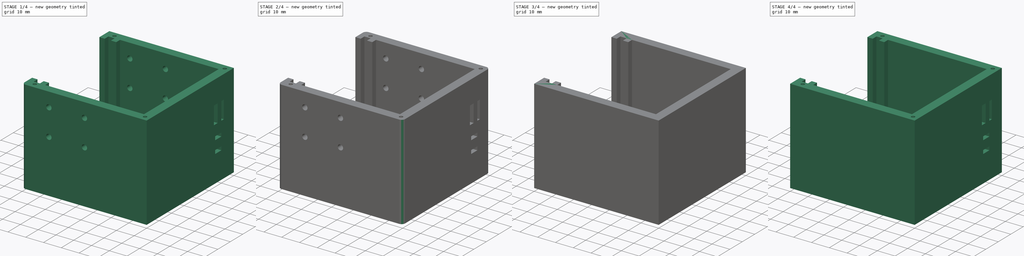
[diagram: build sequence overview — one tinted view per stage of 4, left to right]
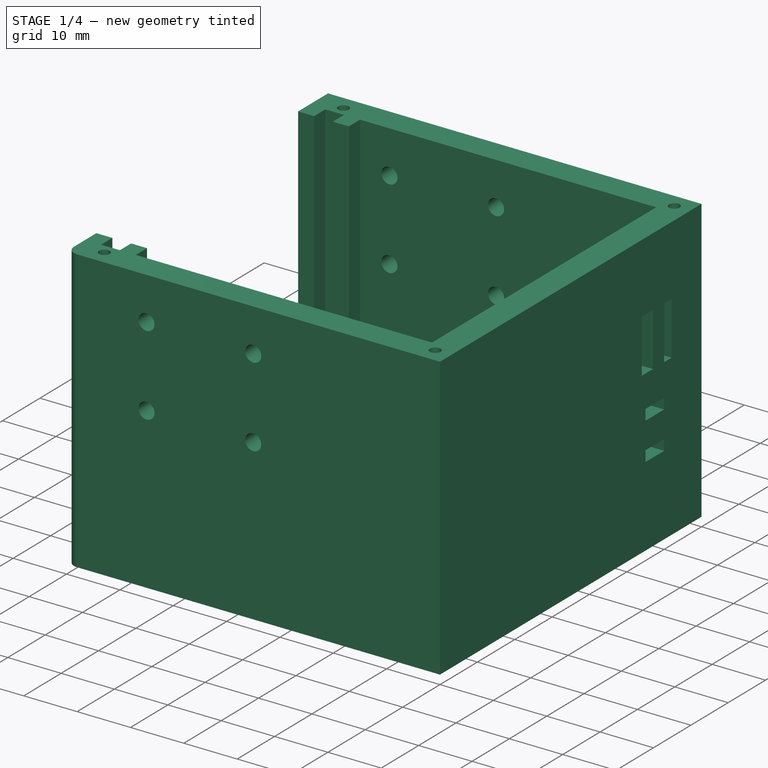
[diagram: stage 1 of 4 — iso view after this stage's code; geometry added in this stage tinted green]
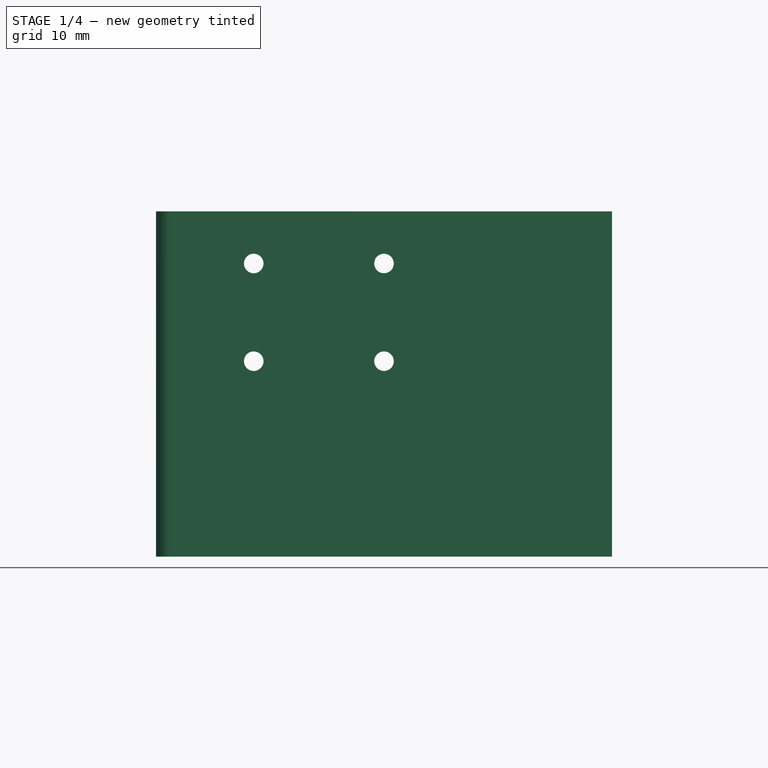
[diagram: stage 1 of 4 — front view after this stage's code; geometry added in this stage tinted green]
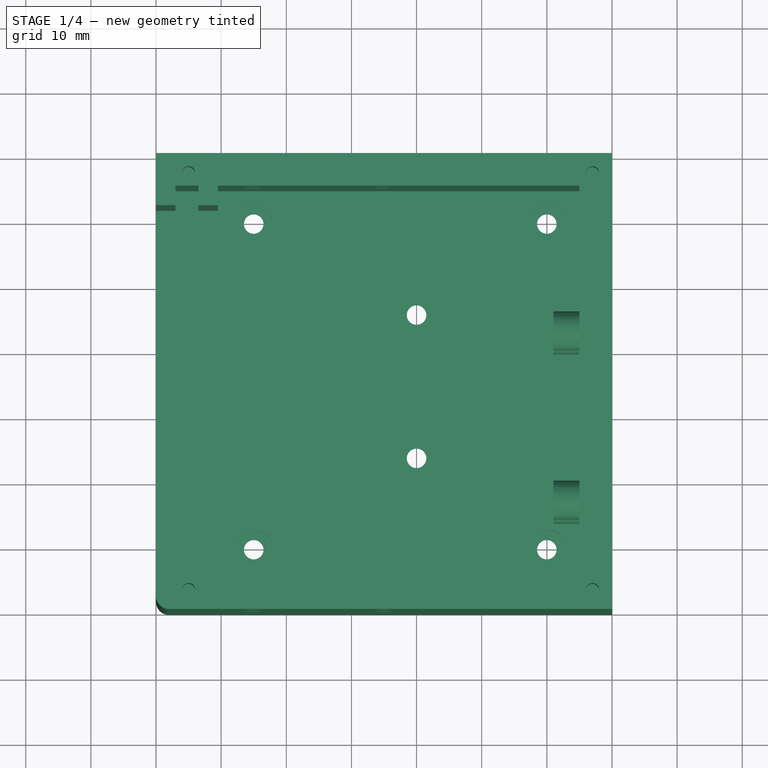
[diagram: stage 1 of 4 — top view after this stage's code; geometry added in this stage tinted green]
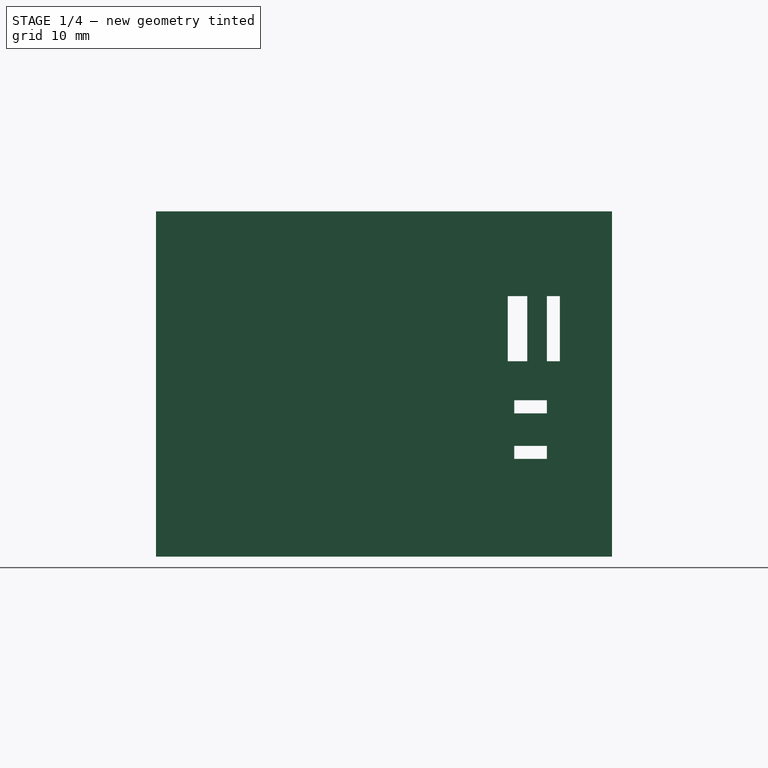
[diagram: stage 1 of 4 — right view after this stage's code; geometry added in this stage tinted green]
FCSTD DOCUMENT  (FreeCAD 0.16R6706 (Git))
Label: iROB-EA_Camara
License: All rights reserved
LicenseURL: http://en.wikipedia.org/wiki/All_rights_reserved
objects: Sketcher::SketchObject×10, PartDesign::Pocket×7, PartDesign::Fillet×4, PartDesign::Pad×3
note: 34 computed .brp shape members not serialized (recipe doc carries the construction recipe); baked Part::Feature solids carry a one-line shape summary decoded from their .brp

FEATURE [Sketcher::SketchObject] Sketch008  label="Taladros_Inferiores_1"
  Placement = pos=(0,0,0) rot=(1,0,0;3.14159rad)
  sketch-geometry (4):
    g0: Circle CenterX=15 CenterY=-10 CenterZ=0 NormalX=0 NormalY=0 NormalZ=1 Radius=1.5
    g1: Circle CenterX=15 CenterY=-60 CenterZ=0 NormalX=0 NormalY=0 NormalZ=1 Radius=1.5
    g2: Circle CenterX=60 CenterY=-10 CenterZ=0 NormalX=0 NormalY=0 NormalZ=1 Radius=1.5
    g3: Circle CenterX=60 CenterY=-60 CenterZ=0 NormalX=0 NormalY=0 NormalZ=1 Radius=1.5
  constraints (12):
    c: Radius(g0) = 1.5
    c: Radius(g1) = 1.5
    c: DistanceX(g1,g0) = 0
    c: DistanceY(g1,g0) = 50
    c: DistanceY(g0,g-1) = 10
    c: Radius(g2) = 1.5
    c: Radius(g3) = 1.5
    c: DistanceY(g0,g2) = 0
    c: DistanceX(g0,g2) = 45
    c: DistanceX(g2,g3) = 0
    c: DistanceY(g1,g3) = 0
    c: DistanceX(g-1,g0) = 15
FEATURE [PartDesign::Pocket] Pocket005
  Length = 5
  Sketch = -> Sketch008
  Type = 0
FEATURE [Sketcher::SketchObject] Sketch009  label="Taladros_Inferiores_2"
  Placement = pos=(0,0,3) rot=(0,0,1;0rad)
  Support = -> Pocket005 [Face1]
  sketch-geometry (4):
    g0: Circle CenterX=15 CenterY=60 CenterZ=0 NormalX=0 NormalY=0 NormalZ=1 Radius=3
    g1: Circle CenterX=60 CenterY=60 CenterZ=0 NormalX=0 NormalY=0 NormalZ=1 Radius=3
    g2: Circle CenterX=15 CenterY=10 CenterZ=0 NormalX=0 NormalY=0 NormalZ=1 Radius=3
    g3: Circle CenterX=60 CenterY=10 CenterZ=0 NormalX=0 NormalY=0 NormalZ=1 Radius=3
  constraints (12):
    c: Radius(g0) = 3
    c: Radius(g1) = 3
    c: DistanceY(g1,g0) = 0
    c: DistanceX(g0,g1) = 45
    c: Radius(g2) = 3
    c: Radius(g3) = 3
    c: DistanceY(g3,g2) = 0
    c: DistanceX(g3,g1) = 0
    c: DistanceX(g2,g0) = 0
    c: DistanceY(g2,g0) = 50
    c: DistanceX(g-1,g2) = 15
    c: DistanceY(g-1,g2) = 10
FEATURE [PartDesign::Pocket] Pocket006
  Length = 1
  Sketch = -> Sketch009
  Type = 0
FEATURE [Sketcher::SketchObject] Sketch010  label="Taladros_Microfono_Foco"
  Placement = pos=(0,70,0) rot=(0,0.707107,0.707107;3.14159rad)
  Support = -> Pocket006 [Face26]
  sketch-geometry (4):
    g0: Circle CenterX=-35 CenterY=45 CenterZ=0 NormalX=0 NormalY=0 NormalZ=1 Radius=1.5
    g1: Circle CenterX=-15 CenterY=45 CenterZ=0 NormalX=0 NormalY=0 NormalZ=1 Radius=1.5
    g2: Circle CenterX=-35 CenterY=30 CenterZ=0 NormalX=0 NormalY=0 NormalZ=1 Radius=1.5
    g3: Circle CenterX=-15 CenterY=30 CenterZ=0 NormalX=0 NormalY=0 NormalZ=1 Radius=1.5
  constraints (12):
    c: Radius(g0) = 1.5
    c: Radius(g1) = 1.5
    c: DistanceY(g0,g1) = 0
    c: DistanceX(g0,g1) = 20
    c: Radius(g2) = 1.5
    c: Radius(g3) = 1.5
    c: DistanceY(g3,g2) = 0
    c: DistanceX(g2,g3) = 20
    c: DistanceY(g2,g0) = 15
    c: DistanceX(g3,g1) = 0
    c: DistanceX(g-1,g3) = -15
    c: DistanceY(g-1,g3) = 30
FEATURE [PartDesign::Pocket] Pocket007
  Length = 80
  Sketch = -> Sketch010
  Type = 0
FEATURE [PartDesign::Fillet] Fillet
  Base = -> Pocket007 [Edge26]
  Radius = 2
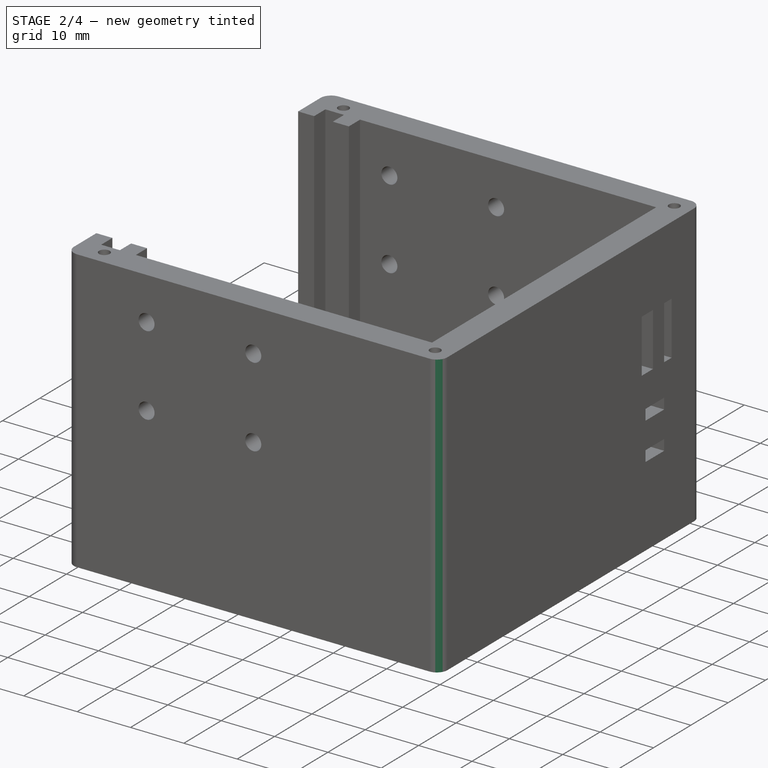
[diagram: stage 2 of 4 — iso view after this stage's code; geometry added in this stage tinted green]
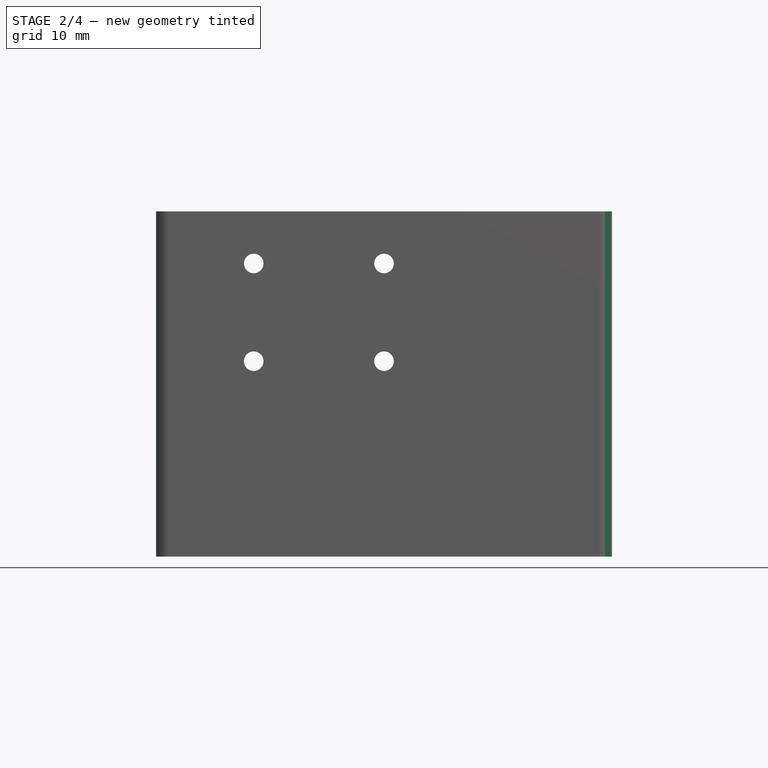
[diagram: stage 2 of 4 — front view after this stage's code; geometry added in this stage tinted green]
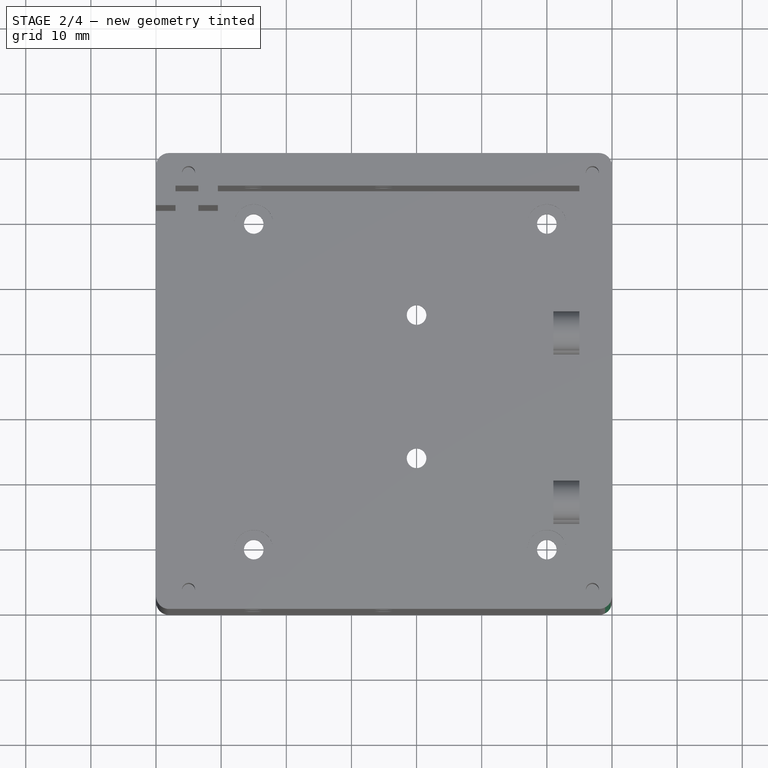
[diagram: stage 2 of 4 — top view after this stage's code; geometry added in this stage tinted green]
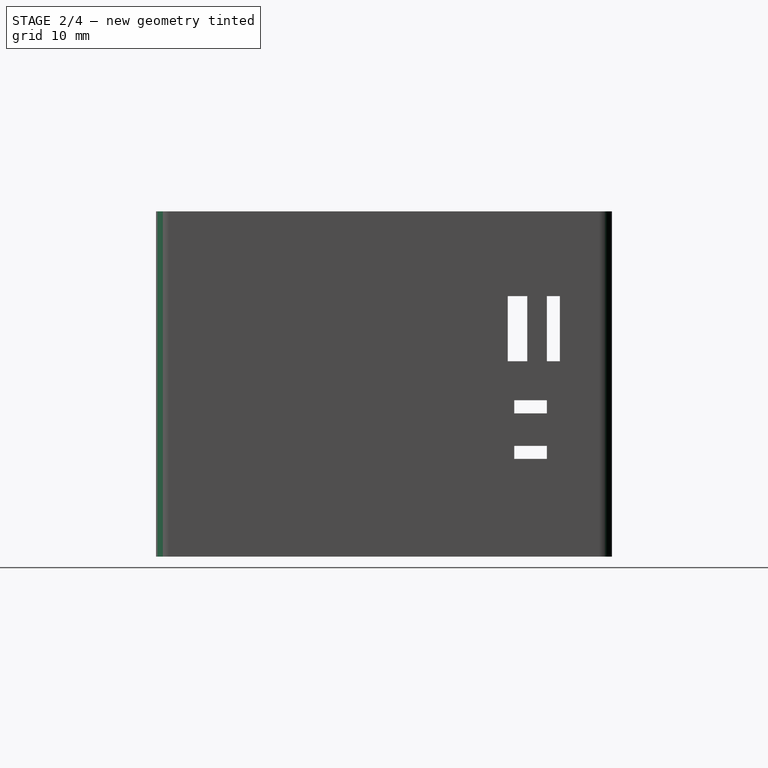
[diagram: stage 2 of 4 — right view after this stage's code; geometry added in this stage tinted green]
FEATURE [PartDesign::Fillet] Fillet001
  Base = -> Fillet [Edge71]
  Radius = 2
FEATURE [PartDesign::Fillet] Fillet002
  Base = -> Fillet001 [Edge39]
  Radius = 2
FEATURE [PartDesign::Fillet] Fillet003
  Base = -> Fillet002 [Edge52]
  Radius = 2
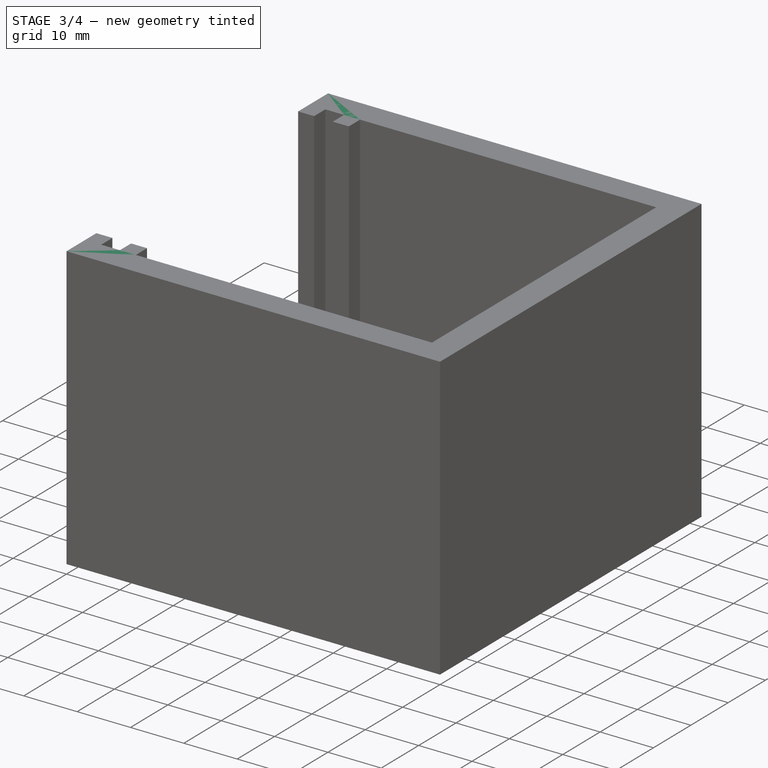
[diagram: stage 3 of 4 — iso view after this stage's code; geometry added in this stage tinted green]
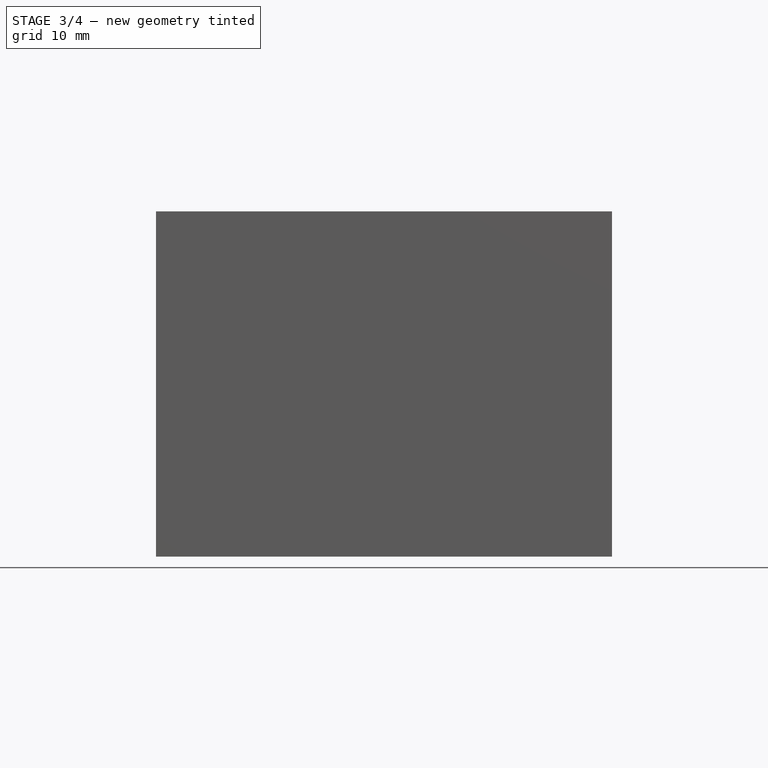
[diagram: stage 3 of 4 — front view after this stage's code; geometry added in this stage tinted green]
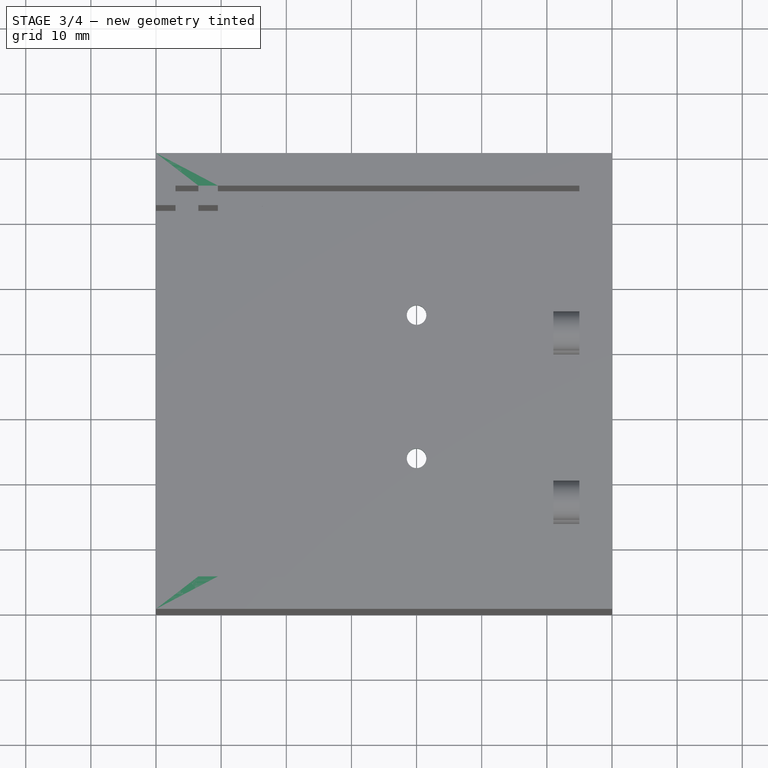
[diagram: stage 3 of 4 — top view after this stage's code; geometry added in this stage tinted green]
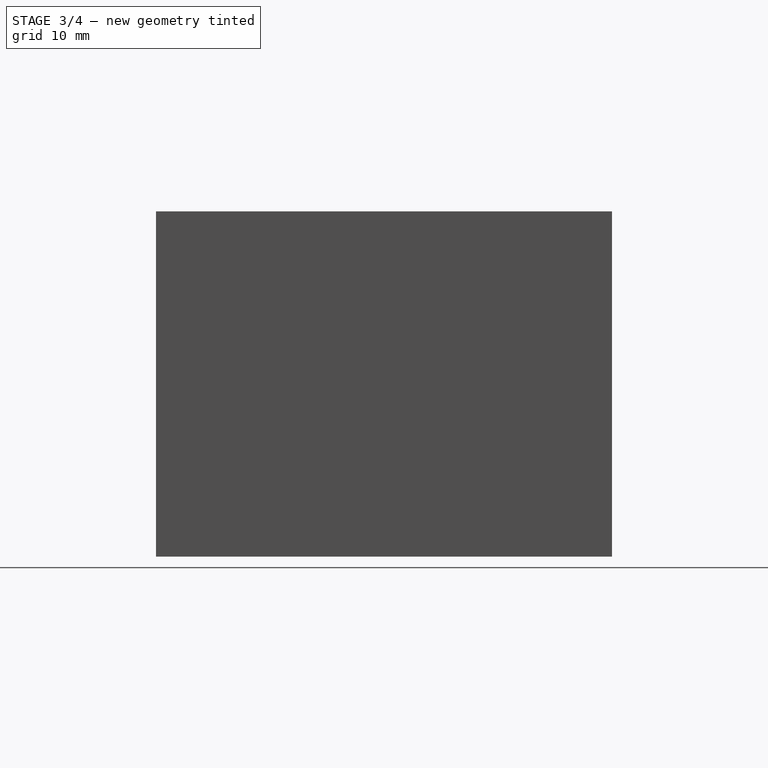
[diagram: stage 3 of 4 — right view after this stage's code; geometry added in this stage tinted green]
FEATURE [Sketcher::SketchObject] Sketch  label="Base"
  sketch-geometry (4):
    g0: LineSegment StartX=0 StartY=70 StartZ=0 EndX=70 EndY=70 EndZ=0
    g1: LineSegment StartX=70 StartY=70 StartZ=0 EndX=70 EndY=0 EndZ=0
    g2: LineSegment StartX=70 StartY=0 StartZ=0 EndX=0 EndY=0 EndZ=0
    g3: LineSegment StartX=0 StartY=0 StartZ=0 EndX=0 EndY=70 EndZ=0
  constraints (11):
    c: Coincident(g0,g1)
    c: Coincident(g1,g2)
    c: Coincident(g2,g3)
    c: Coincident(g3,g0)
    c: Horizontal(g0)
    c: Horizontal(g2)
    c: Vertical(g1)
    c: Vertical(g3)
    c: Coincident(g2,g-1)
    c: DistanceX(g2,g2) = 70
    c: DistanceY(g1,g1) = 70
FEATURE [PartDesign::Pad] Pad
  Length = 3
  Length2 = 100
  Sketch = -> Sketch
  Type = 0
FEATURE [Sketcher::SketchObject] Sketch001  label="Cuerpo"
  Placement = pos=(0,0,3) rot=(0,0,1;0rad)
  Support = -> Pad [Face6]
  sketch-geometry (24):
    g0: LineSegment StartX=0 StartY=70 StartZ=0 EndX=70 EndY=70 EndZ=0
    g1: LineSegment StartX=0 StartY=70 StartZ=0 EndX=0 EndY=62 EndZ=0
    g2: LineSegment StartX=70 StartY=70 StartZ=0 EndX=70 EndY=65 EndZ=0
    g3: LineSegment StartX=0 StartY=62 StartZ=0 EndX=3 EndY=62 EndZ=0
    g4: LineSegment StartX=3 StartY=65 StartZ=0 EndX=3 EndY=62 EndZ=0
    g5: LineSegment StartX=3 StartY=65 StartZ=0 EndX=6.5 EndY=65 EndZ=0
    g6: LineSegment StartX=6.5 StartY=65 StartZ=0 EndX=6.5 EndY=62 EndZ=0
    g7: LineSegment StartX=6.5 StartY=62 StartZ=0 EndX=9.5 EndY=62 EndZ=0
    g8: LineSegment StartX=9.5 StartY=65 StartZ=0 EndX=9.5 EndY=62 EndZ=0
    g9: LineSegment StartX=9.5 StartY=65 StartZ=0 EndX=70 EndY=65 EndZ=0
    g10: LineSegment StartX=0 StartY=0 StartZ=0 EndX=70 EndY=0 EndZ=0
    g11: LineSegment StartX=0 StartY=0 StartZ=0 EndX=0 EndY=8 EndZ=0
    g12: LineSegment StartX=70 StartY=0 StartZ=0 EndX=70 EndY=5 EndZ=0
    g13: LineSegment StartX=0 StartY=8 StartZ=0 EndX=3 EndY=8 EndZ=0
    g14: LineSegment StartX=3 StartY=5 StartZ=0 EndX=3 EndY=8 EndZ=0
    g15: LineSegment StartX=3 StartY=5 StartZ=0 EndX=6.5 EndY=5 EndZ=0
    g16: LineSegment StartX=6.5 StartY=5 StartZ=0 EndX=6.5 EndY=8 EndZ=0
    g17: LineSegment StartX=6.5 StartY=8 StartZ=0 EndX=9.5 EndY=8 EndZ=0
    g18: LineSegment StartX=9.5 StartY=5 StartZ=0 EndX=9.5 EndY=8 EndZ=0
    g19: LineSegment StartX=9.5 StartY=5 StartZ=0 EndX=70 EndY=5 EndZ=0
    g20: LineSegment StartX=65 StartY=65 StartZ=0 EndX=70 EndY=65 EndZ=0
    g21: LineSegment StartX=70 StartY=65 StartZ=0 EndX=70 EndY=5 EndZ=0
    g22: LineSegment StartX=70 StartY=5 StartZ=0 EndX=65 EndY=5 EndZ=0
    g23: LineSegment StartX=65 StartY=5 StartZ=0 EndX=65 EndY=65 EndZ=0
  constraints (67):
    c: Horizontal(g0)
    c: DistanceX(g0,g0) = 70
    c: DistanceY(g1,g1) = 8
    c: Vertical(g1)
    c: Coincident(g0,g1)
    c: DistanceY(g2,g2) = 5
    c: Vertical(g2)
    c: Coincident(g2,g0)
    c: DistanceX(g3,g3) = 3
    c: Horizontal(g3)
    c: Coincident(g3,g1)
    c: DistanceY(g4,g4) = 3
    c: Vertical(g4)
    c: Coincident(g3,g4)
    c: DistanceX(g5,g5) = 3.5
    c: Horizontal(g5)
    c: Coincident(g5,g4)
    c: DistanceY(g6,g6) = 3
    c: Vertical(g6)
    c: Coincident(g6,g5)
    c: DistanceX(g7,g7) = 3
    c: Horizontal(g7)
    c: Coincident(g6,g7)
    c: DistanceY(g8,g8) = 3
    c: Vertical(g8)
    c: Coincident(g8,g7)
    c: Horizontal(g9)
    c: Coincident(g9,g2)
    c: Coincident(g9,g8)
    c: DistanceX(g-1,g1) = 0
    c: DistanceY(g-1,g1) = 62
    c: Horizontal(g10)
    c: Vertical(g11)
    c: Coincident(g10,g11)
    c: Vertical(g12)
    c: Coincident(g12,g10)
    c: Horizontal(g13)
    c: Coincident(g13,g11)
    c: Vertical(g14)
    c: Coincident(g13,g14)
    c: Horizontal(g15)
    c: Coincident(g15,g14)
    c: Vertical(g16)
    c: Coincident(g16,g15)
    c: Horizontal(g17)
    c: Coincident(g16,g17)
    c: Vertical(g18)
    c: Coincident(g18,g17)
    c: Horizontal(g19)
    c: Coincident(g19,g12)
    c: Coincident(g19,g18)
    c: Coincident(g20,g21)
    c: Coincident(g21,g22)
    c: Coincident(g22,g23)
    c: Coincident(g23,g20)
    c: Horizontal(g20)
    c: Horizontal(g22)
    c: Vertical(g21)
    c: Vertical(g23)
    c: DistanceX(g22,g22) = 5
    c: DistanceY(g23,g23) = 60
    c: Coincident(g20,g2)
    c: Coincident(g12,g21)
    c: DistanceX(g14,g15) = 3.5
    c: DistanceX(g11,g13) = 3
    c: DistanceX(g16,g17) = 3
    c: DistanceX(g17,g7) = 0
FEATURE [PartDesign::Pad] Pad001
  Length = 50
  Length2 = 100
  Sketch = -> Sketch001
  Type = 0
FEATURE [Sketcher::SketchObject] Sketch002  label="Taladros_Camara_1"
  Placement = pos=(0,0,3) rot=(0,0,1;0rad)
  Support = -> Pad001 [Face1]
  sketch-geometry (2):
    g0: Circle CenterX=40 CenterY=24 CenterZ=0 NormalX=0 NormalY=0 NormalZ=1 Radius=1.5
    g1: Circle CenterX=40 CenterY=46 CenterZ=0 NormalX=0 NormalY=0 NormalZ=1 Radius=1.5
  constraints (6):
    c: Radius(g0) = 1.5
    c: Radius(g1) = 1.5
    c: DistanceX(g1,g0) = 0
    c: DistanceY(g0,g1) = 22
    c: DistanceY(g-1,g0) = 24
    c: DistanceX(g-1,g0) = 40
FEATURE [PartDesign::Pocket] Pocket
  Length = 5
  Sketch = -> Sketch002
  Type = 0
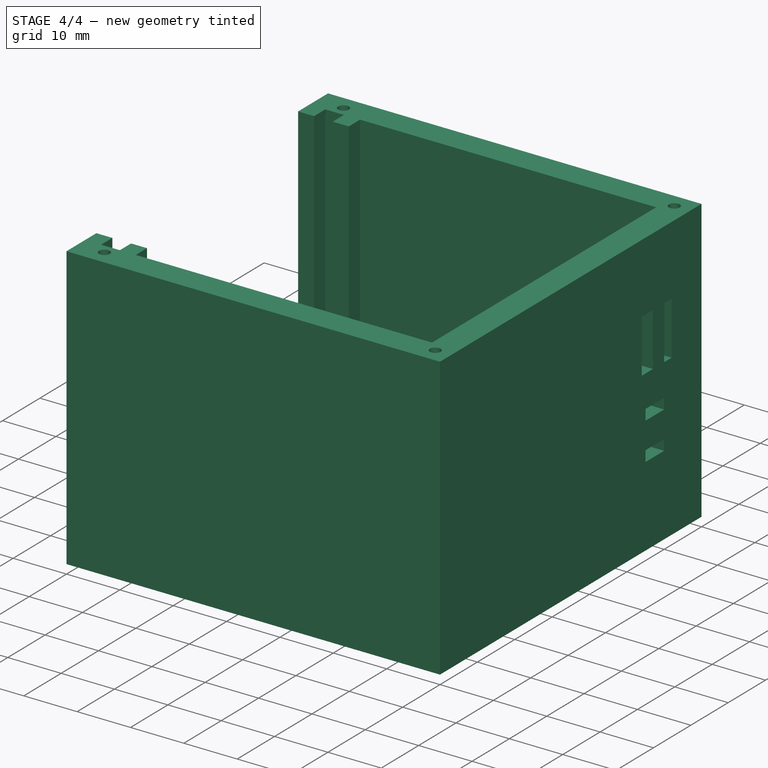
[diagram: stage 4 of 4 — iso view after this stage's code; geometry added in this stage tinted green]
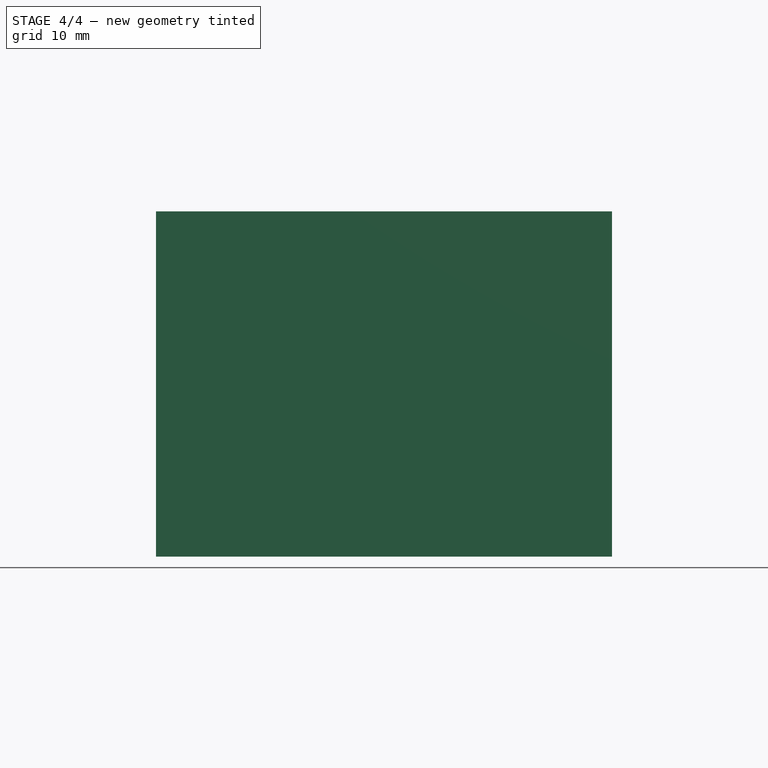
[diagram: stage 4 of 4 — front view after this stage's code; geometry added in this stage tinted green]
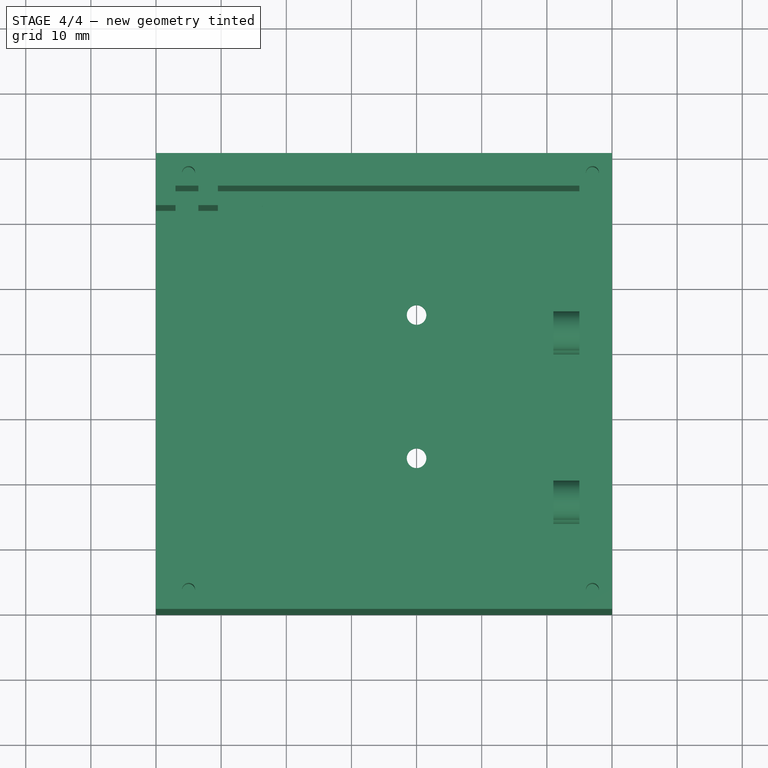
[diagram: stage 4 of 4 — top view after this stage's code; geometry added in this stage tinted green]
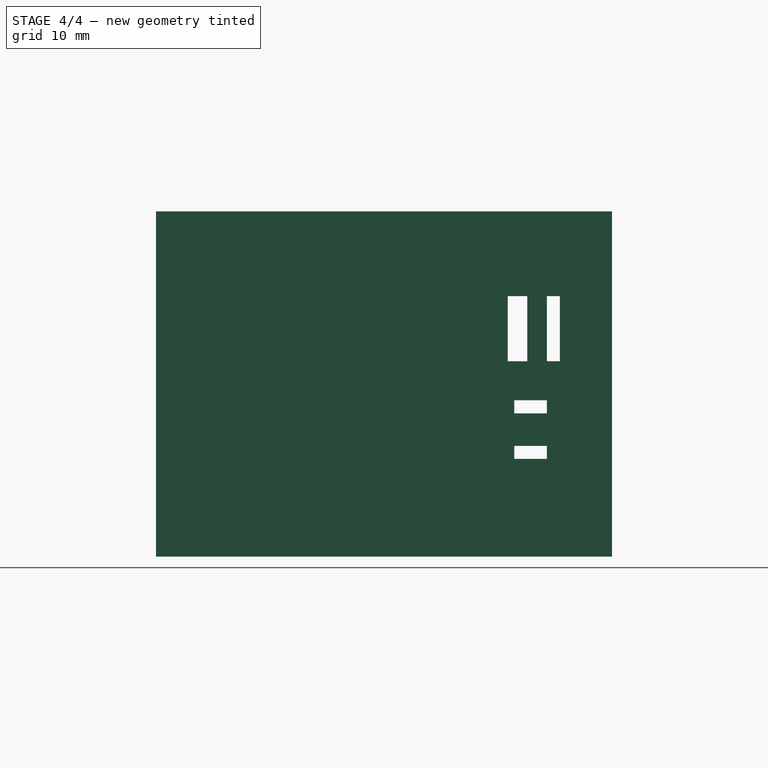
[diagram: stage 4 of 4 — right view after this stage's code; geometry added in this stage tinted green]
FEATURE [Sketcher::SketchObject] Sketch003  label="Entradas_Cables"
  Placement = pos=(70,0,0) rot=(0.57735,0.57735,0.57735;2.0944rad)
  Support = -> Pocket [Face24]
  sketch-geometry (16):
    g0: LineSegment StartX=60 StartY=40 StartZ=0 EndX=62 EndY=40 EndZ=0
    g1: LineSegment StartX=62 StartY=40 StartZ=0 EndX=62 EndY=30 EndZ=0
    g2: LineSegment StartX=62 StartY=30 StartZ=0 EndX=60 EndY=30 EndZ=0
    g3: LineSegment StartX=60 StartY=30 StartZ=0 EndX=60 EndY=40 EndZ=0
    g4: LineSegment StartX=55 StartY=24 StartZ=0 EndX=60 EndY=24 EndZ=0
    g5: LineSegment StartX=60 StartY=24 StartZ=0 EndX=60 EndY=22 EndZ=0
    g6: LineSegment StartX=60 StartY=22 StartZ=0 EndX=55 EndY=22 EndZ=0
    g7: LineSegment StartX=55 StartY=22 StartZ=0 EndX=55 EndY=24 EndZ=0
    g8: LineSegment StartX=55 StartY=17 StartZ=0 EndX=60 EndY=17 EndZ=0
    g9: LineSegment StartX=60 StartY=17 StartZ=0 EndX=60 EndY=15 EndZ=0
    g10: LineSegment StartX=60 StartY=15 StartZ=0 EndX=55 EndY=15 EndZ=0
    g11: LineSegment StartX=55 StartY=15 StartZ=0 EndX=55 EndY=17 EndZ=0
    g12: LineSegment StartX=54 StartY=40 StartZ=0 EndX=57 EndY=40 EndZ=0
    g13: LineSegment StartX=57 StartY=40 StartZ=0 EndX=57 EndY=30 EndZ=0
    g14: LineSegment StartX=57 StartY=30 StartZ=0 EndX=54 EndY=30 EndZ=0
    g15: LineSegment StartX=54 StartY=30 StartZ=0 EndX=54 EndY=40 EndZ=0
  constraints (48):
    c: Coincident(g0,g1)
    c: Coincident(g1,g2)
    c: Coincident(g2,g3)
    c: Coincident(g3,g0)
    c: Horizontal(g0)
    c: Horizontal(g2)
    c: Vertical(g1)
    c: Vertical(g3)
    c: DistanceY(g1,g1) = 10
    c: DistanceX(g0,g0) = 2
    c: DistanceX(g2,g-1) = -60
    c: DistanceY(g-1,g2) = 30
    c: Coincident(g4,g5)
    c: Coincident(g5,g6)
    c: Coincident(g6,g7)
    c: Coincident(g7,g4)
    c: Horizontal(g4)
    c: Horizontal(g6)
    c: Vertical(g5)
    c: Vertical(g7)
    c: DistanceX(g4,g4) = 5
    c: DistanceY(g7,g7) = 2
    c: Coincident(g8,g9)
    c: Coincident(g9,g10)
    c: Coincident(g10,g11)
    c: Coincident(g11,g8)
    c: Horizontal(g8)
    c: Horizontal(g10)
    c: Vertical(g9)
    c: Vertical(g11)
    c: DistanceY(g9,g9) = 2
    c: DistanceX(g8,g8) = 5
    c: DistanceX(g6,g8) = 0
    c: DistanceY(g8,g6) = 5
    c: DistanceX(g4,g2) = 0
    c: DistanceY(g-1,g9) = 15
    c: Coincident(g12,g13)
    c: Coincident(g13,g14)
    c: Coincident(g14,g15)
    c: Coincident(g15,g12)
    c: Horizontal(g12)
    c: Horizontal(g14)
    c: Vertical(g13)
    c: Vertical(g15)
    c: DistanceY(g13,g13) = 10
    c: DistanceX(g12,g12) = 3
    c: DistanceY(g2,g13) = 0
    c: DistanceX(g13,g2) = 3
FEATURE [PartDesign::Pocket] Pocket001
  Length = 5
  Sketch = -> Sketch003
  Type = 0
FEATURE [Sketcher::SketchObject] Sketch004  label="Soportes_CI"
  Placement = pos=(65,0,0) rot=(0.57735,-0.57735,-0.57735;2.0944rad)
  Support = -> Pocket001 [Face16]
  sketch-geometry (8):
    g0: Circle CenterX=-16.8695 CenterY=43.0733 CenterZ=0 NormalX=0 NormalY=0 NormalZ=1 Radius=1
    g1: Circle CenterX=-16.8695 CenterY=43.0733 CenterZ=0 NormalX=0 NormalY=0 NormalZ=1 Radius=3
    g2: Circle CenterX=-42.8695 CenterY=43.0733 CenterZ=0 NormalX=0 NormalY=0 NormalZ=1 Radius=1
    g3: Circle CenterX=-42.8695 CenterY=43.0733 CenterZ=0 NormalX=0 NormalY=0 NormalZ=1 Radius=3
    g4: Circle CenterX=-16.8695 CenterY=6.92673 CenterZ=0 NormalX=0 NormalY=0 NormalZ=1 Radius=1
    g5: Circle CenterX=-16.8695 CenterY=6.92673 CenterZ=0 NormalX=0 NormalY=0 NormalZ=1 Radius=3
    g6: Circle CenterX=-42.8695 CenterY=6.92673 CenterZ=0 NormalX=0 NormalY=0 NormalZ=1 Radius=1
    g7: Circle CenterX=-42.8695 CenterY=6.92673 CenterZ=0 NormalX=0 NormalY=0 NormalZ=1 Radius=3
  constraints (14):
    c: Radius(g0) = 1
    c: Radius(g1) = 3
    c: Coincident(g1,g0)
    c: Radius(g2) = 1
    c: Radius(g3) = 3
    c: Coincident(g3,g2)
    c: DistanceX(g2,g0) = 26
    c: DistanceY(g0,g2) = 0
    c: Radius(g4) = 1
    c: Radius(g5) = 3
    c: Coincident(g5,g4)
    c: Radius(g6) = 1
    c: Radius(g7) = 3
    c: Coincident(g7,g6)
FEATURE [PartDesign::Pad] Pad002
  Length = 4
  Length2 = 100
  Sketch = -> Sketch004
  Type = 0
FEATURE [Sketcher::SketchObject] Sketch005  label="Taladros_Camara_2"
  Placement = pos=(0,0,0) rot=(1,0,0;3.14159rad)
  Support = -> Pad002 [Face23]
  sketch-geometry (2):
    g0: Circle CenterX=40 CenterY=-24 CenterZ=0 NormalX=0 NormalY=0 NormalZ=1 Radius=3
    g1: Circle CenterX=40 CenterY=-46 CenterZ=0 NormalX=0 NormalY=0 NormalZ=1 Radius=3
  constraints (6):
    c: Radius(g0) = 3
    c: DistanceX(g-1,g0) = 40
    c: DistanceY(g0,g-1) = 24
    c: Radius(g1) = 3
    c: DistanceX(g1,g0) = 0
    c: DistanceY(g1,g0) = 22
FEATURE [PartDesign::Pocket] Pocket002
  Length = 2
  Sketch = -> Sketch005
  Type = 0
FEATURE [Sketcher::SketchObject] Sketch006  label="Taladros_Tapa_Superior"
  Placement = pos=(0,0,53) rot=(0,0,1;0rad)
  Support = -> Pocket002 [Face20]
  sketch-geometry (4):
    g0: Circle CenterX=67 CenterY=3 CenterZ=0 NormalX=0 NormalY=0 NormalZ=1 Radius=1
    g1: Circle CenterX=5 CenterY=3 CenterZ=0 NormalX=0 NormalY=0 NormalZ=1 Radius=1
    g2: Circle CenterX=5 CenterY=67 CenterZ=0 NormalX=0 NormalY=0 NormalZ=1 Radius=1
    g3: Circle CenterX=67 CenterY=67 CenterZ=0 NormalX=0 NormalY=0 NormalZ=1 Radius=1
  constraints (12):
    c: Radius(g0) = 1
    c: Radius(g1) = 1
    c: DistanceY(g1,g0) = 0
    c: DistanceX(g1,g0) = 62
    c: DistanceX(g-1,g1) = 5
    c: Radius(g2) = 1
    c: Radius(g3) = 1
    c: DistanceY(g3,g2) = 0
    c: DistanceX(g2,g3) = 62
    c: DistanceX(g2,g1) = 0
    c: DistanceY(g0,g3) = 64
    c: DistanceY(g-1,g1) = 3
FEATURE [PartDesign::Pocket] Pocket003
  Length = 10
  Sketch = -> Sketch006
  Type = 0
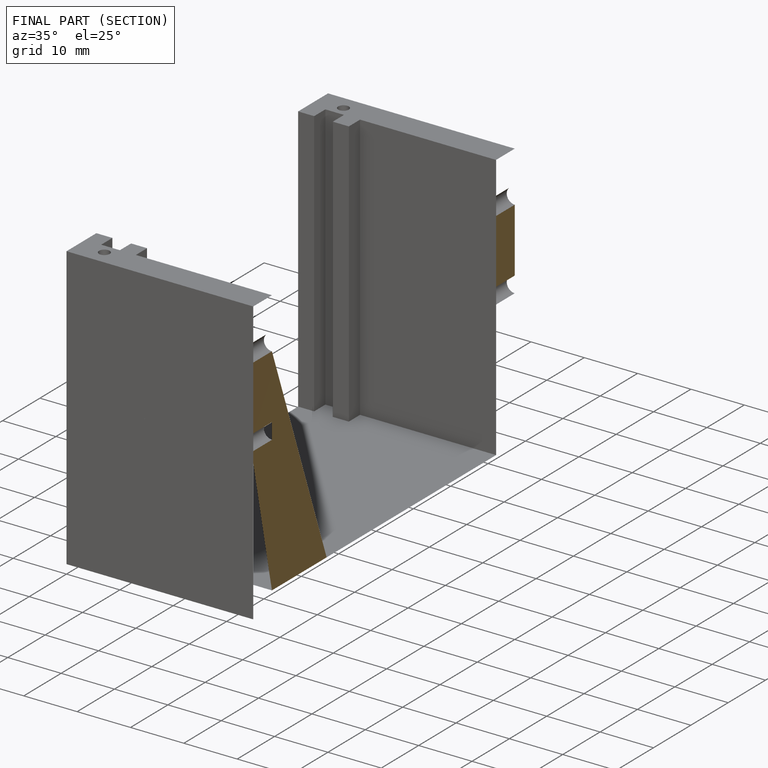
[diagram: finished part — half-section view (interior)]
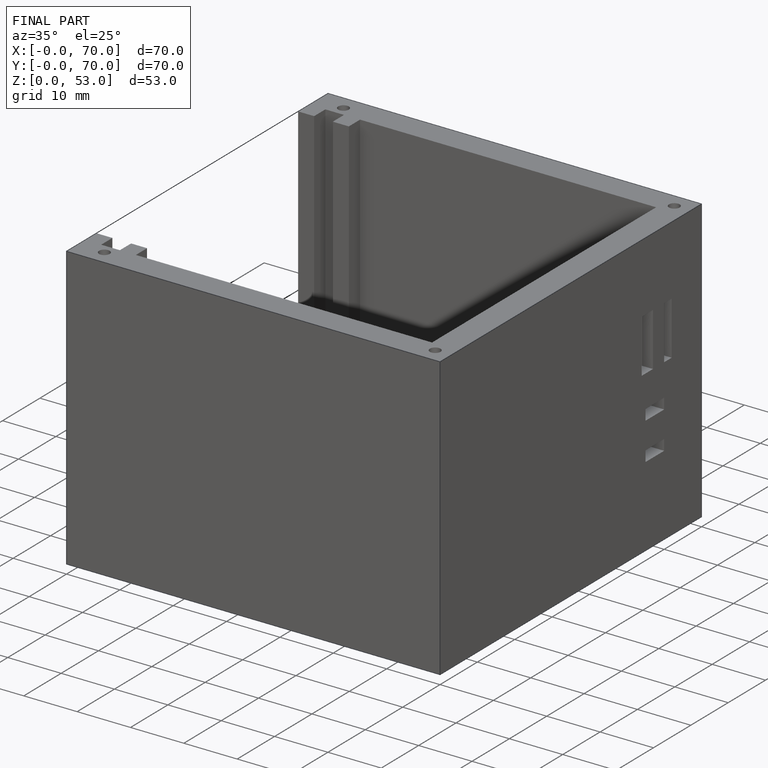
[diagram: finished part — iso view with bounding-box wireframe]
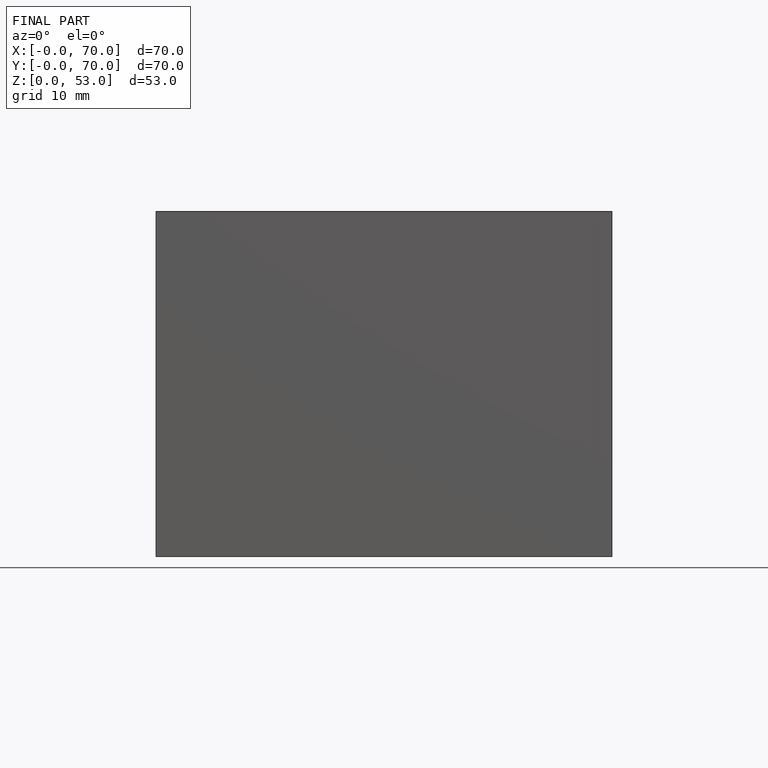
[diagram: finished part — front view with bounding-box wireframe]
